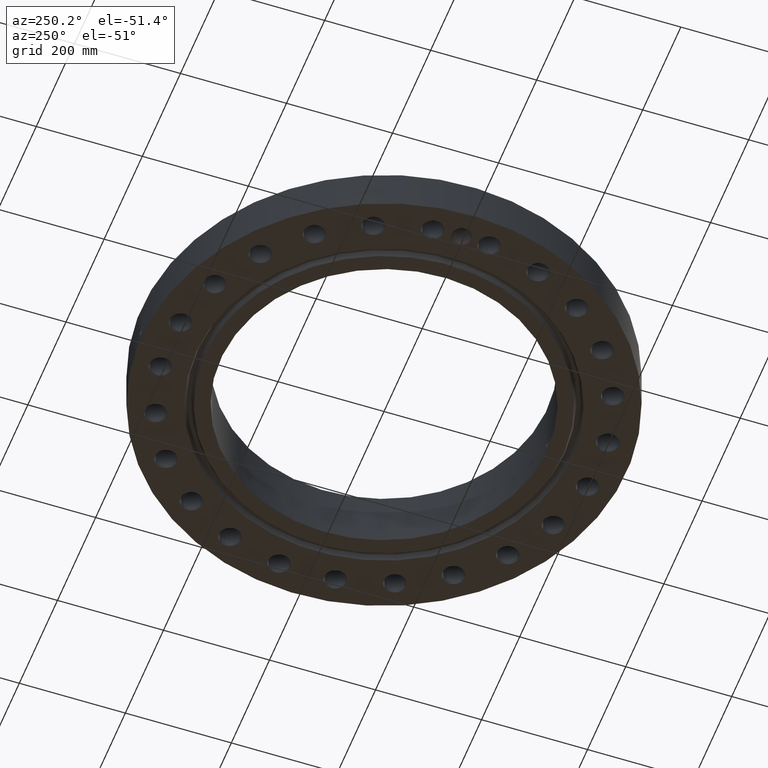
[diagram: clean part render]
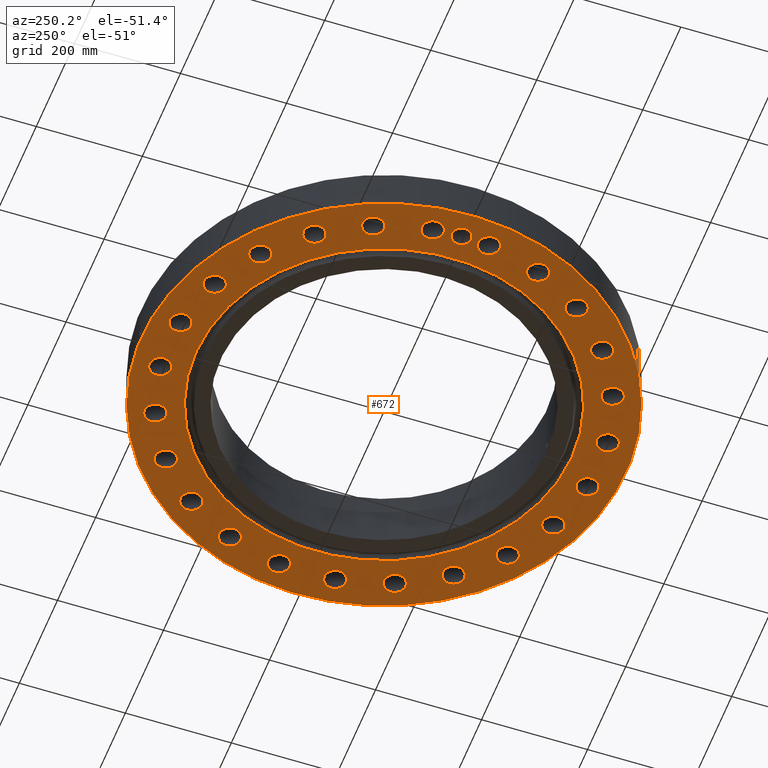
[diagram: same view with one face highlighted and labeled with its STEP entity id]
A machine part, auxiliary view. The second image highlights one B-rep face of the part: STEP entity #672.
In plain terms, the highlighted planar face has unit normal (0, 0, -1).
Its self-contained STEP definition (entity closure, byte-faithful):
#42=AXIS2_PLACEMENT_3D('Circle Axis2P3D',#40,#41,$) ;
#165=AXIS2_PLACEMENT_3D('Plane Axis2P3D',#162,#163,#164) ;
#169=AXIS2_PLACEMENT_3D('Circle Axis2P3D',#167,#168,$) ;
#178=AXIS2_PLACEMENT_3D('Circle Axis2P3D',#176,#177,$) ;
#187=AXIS2_PLACEMENT_3D('Circle Axis2P3D',#185,#186,$) ;
#224=AXIS2_PLACEMENT_3D('Circle Axis2P3D',#222,#223,$) ;
#233=AXIS2_PLACEMENT_3D('Circle Axis2P3D',#231,#232,$) ;
#242=AXIS2_PLACEMENT_3D('Circle Axis2P3D',#240,#241,$) ;
#251=AXIS2_PLACEMENT_3D('Circle Axis2P3D',#249,#250,$) ;
#260=AXIS2_PLACEMENT_3D('Circle Axis2P3D',#258,#259,$) ;
#269=AXIS2_PLACEMENT_3D('Circle Axis2P3D',#267,#268,$) ;
#278=AXIS2_PLACEMENT_3D('Circle Axis2P3D',#276,#277,$) ;
#287=AXIS2_PLACEMENT_3D('Circle Axis2P3D',#285,#286,$) ;
#296=AXIS2_PLACEMENT_3D('Circle Axis2P3D',#294,#295,$) ;
#305=AXIS2_PLACEMENT_3D('Circle Axis2P3D',#303,#304,$) ;
#314=AXIS2_PLACEMENT_3D('Circle Axis2P3D',#312,#313,$) ;
#323=AXIS2_PLACEMENT_3D('Circle Axis2P3D',#321,#322,$) ;
#332=AXIS2_PLACEMENT_3D('Circle Axis2P3D',#330,#331,$) ;
#341=AXIS2_PLACEMENT_3D('Circle Axis2P3D',#339,#340,$) ;
#350=AXIS2_PLACEMENT_3D('Circle Axis2P3D',#348,#349,$) ;
#359=AXIS2_PLACEMENT_3D('Circle Axis2P3D',#357,#358,$) ;
#368=AXIS2_PLACEMENT_3D('Circle Axis2P3D',#366,#367,$) ;
#377=AXIS2_PLACEMENT_3D('Circle Axis2P3D',#375,#376,$) ;
#386=AXIS2_PLACEMENT_3D('Circle Axis2P3D',#384,#385,$) ;
#395=AXIS2_PLACEMENT_3D('Circle Axis2P3D',#393,#394,$) ;
#404=AXIS2_PLACEMENT_3D('Circle Axis2P3D',#402,#403,$) ;
#413=AXIS2_PLACEMENT_3D('Circle Axis2P3D',#411,#412,$) ;
#422=AXIS2_PLACEMENT_3D('Circle Axis2P3D',#420,#421,$) ;
#431=AXIS2_PLACEMENT_3D('Circle Axis2P3D',#429,#430,$) ;
#440=AXIS2_PLACEMENT_3D('Circle Axis2P3D',#438,#439,$) ;
#449=AXIS2_PLACEMENT_3D('Circle Axis2P3D',#447,#448,$) ;
#458=AXIS2_PLACEMENT_3D('Circle Axis2P3D',#456,#457,$) ;
#467=AXIS2_PLACEMENT_3D('Circle Axis2P3D',#465,#466,$) ;
#476=AXIS2_PLACEMENT_3D('Circle Axis2P3D',#474,#475,$) ;
#485=AXIS2_PLACEMENT_3D('Circle Axis2P3D',#483,#484,$) ;
#494=AXIS2_PLACEMENT_3D('Circle Axis2P3D',#492,#493,$) ;
#503=AXIS2_PLACEMENT_3D('Circle Axis2P3D',#501,#502,$) ;
#512=AXIS2_PLACEMENT_3D('Circle Axis2P3D',#510,#511,$) ;
#521=AXIS2_PLACEMENT_3D('Circle Axis2P3D',#519,#520,$) ;
#530=AXIS2_PLACEMENT_3D('Circle Axis2P3D',#528,#529,$) ;
#539=AXIS2_PLACEMENT_3D('Circle Axis2P3D',#537,#538,$) ;
#548=AXIS2_PLACEMENT_3D('Circle Axis2P3D',#546,#547,$) ;
#557=AXIS2_PLACEMENT_3D('Circle Axis2P3D',#555,#556,$) ;
#566=AXIS2_PLACEMENT_3D('Circle Axis2P3D',#564,#565,$) ;
#575=AXIS2_PLACEMENT_3D('Circle Axis2P3D',#573,#574,$) ;
#584=AXIS2_PLACEMENT_3D('Circle Axis2P3D',#582,#583,$) ;
#593=AXIS2_PLACEMENT_3D('Circle Axis2P3D',#591,#592,$) ;
#602=AXIS2_PLACEMENT_3D('Circle Axis2P3D',#600,#601,$) ;
#611=AXIS2_PLACEMENT_3D('Circle Axis2P3D',#609,#610,$) ;
#620=AXIS2_PLACEMENT_3D('Circle Axis2P3D',#618,#619,$) ;
#629=AXIS2_PLACEMENT_3D('Circle Axis2P3D',#627,#628,$) ;
#638=AXIS2_PLACEMENT_3D('Circle Axis2P3D',#636,#637,$) ;
#647=AXIS2_PLACEMENT_3D('Circle Axis2P3D',#645,#646,$) ;
#656=AXIS2_PLACEMENT_3D('Circle Axis2P3D',#654,#655,$) ;
#665=AXIS2_PLACEMENT_3D('Circle Axis2P3D',#663,#664,$) ;
#40=CARTESIAN_POINT('Axis2P3D Location',(0.,7.99652833788E-018,2.51767111096E-015)) ;
#44=CARTESIAN_POINT('Vertex',(-8.62965969491,-15.7964861141,2.79741234551E-015)) ;
#46=CARTESIAN_POINT('Vertex',(8.62965969491,15.7964861141,2.79741234551E-015)) ;
#162=CARTESIAN_POINT('Axis2P3D Location',(0.,12.125,0.)) ;
#167=CARTESIAN_POINT('Axis2P3D Location',(0.,0.,0.)) ;
#176=CARTESIAN_POINT('Axis2P3D Location',(-16.0000000001,2.23792987641E-015,0.)) ;
#180=CARTESIAN_POINT('Vertex',(-16.6422807376,0.350879566067,0.)) ;
#182=CARTESIAN_POINT('Vertex',(-15.2706180952,-0.0603577039318,0.)) ;
#185=CARTESIAN_POINT('Axis2P3D Location',(-16.0000000001,2.23792987641E-015,0.)) ;
#189=CARTESIAN_POINT('Vertex',(-15.9640705733,-0.730992538894,0.)) ;
#193=CARTESIAN_POINT('Control Point',(-15.4784331482,-0.538956017716,0.)) ;
#194=CARTESIAN_POINT('Control Point',(-15.5284253323,-0.584180456732,0.)) ;
#195=CARTESIAN_POINT('Control Point',(-15.5834037092,-0.62369915158,0.)) ;
#196=CARTESIAN_POINT('Control Point',(-15.6425220017,-0.656774812367,0.)) ;
#197=CARTESIAN_POINT('Control Point',(-15.7416116954,-0.698286666719,0.)) ;
#198=CARTESIAN_POINT('Control Point',(-15.8458320225,-0.721254842815,0.)) ;
#199=CARTESIAN_POINT('Control Point',(-15.8850798336,-0.727167159233,0.)) ;
#200=CARTESIAN_POINT('Control Point',(-15.924572672,-0.730413805674,0.)) ;
#201=CARTESIAN_POINT('Control Point',(-15.9640705733,-0.730992538894,0.)) ;
#202=CARTESIAN_POINT('Vertex',(-15.4784331482,-0.53895601773,-3.82458719113E-018)) ;
#206=CARTESIAN_POINT('Control Point',(-15.4784331482,-0.53895601773,0.)) ;
#207=CARTESIAN_POINT('Control Point',(-15.4316159363,-0.490506917677,0.)) ;
#208=CARTESIAN_POINT('Control Point',(-15.3903182367,-0.436878751361,0.)) ;
#209=CARTESIAN_POINT('Control Point',(-15.3553143492,-0.378883495056,0.)) ;
#210=CARTESIAN_POINT('Control Point',(-15.310614512,-0.281286856105,0.)) ;
#211=CARTESIAN_POINT('Control Point',(-15.2842494525,-0.177930856355,0.)) ;
#212=CARTESIAN_POINT('Control Point',(-15.2770608483,-0.138990457553,0.)) ;
#213=CARTESIAN_POINT('Control Point',(-15.2725137827,-0.0997184798916,0.)) ;
#214=CARTESIAN_POINT('Control Point',(-15.2706180952,-0.0603577039318,0.)) ;
#222=CARTESIAN_POINT('Axis2P3D Location',(15.863117782,-2.08841907553,0.)) ;
#226=CARTESIAN_POINT('Vertex',(16.5739596572,-2.4767537618,0.)) ;
#228=CARTESIAN_POINT('Vertex',(15.1522759069,-1.70008438926,0.)) ;
#231=CARTESIAN_POINT('Axis2P3D Location',(15.863117782,-2.08841907553,0.)) ;
#240=CARTESIAN_POINT('Axis2P3D Location',(14.7820725202,-6.12293491787,0.)) ;
#244=CARTESIAN_POINT('Vertex',(14.1959604073,-5.56385299981,0.)) ;
#246=CARTESIAN_POINT('Vertex',(15.3681846332,-6.68201683592,0.)) ;
#249=CARTESIAN_POINT('Axis2P3D Location',(14.7820725202,-6.12293491787,0.)) ;
#258=CARTESIAN_POINT('Axis2P3D Location',(12.6936534447,-9.74018286418,0.)) ;
#262=CARTESIAN_POINT('Vertex',(12.2722136659,-9.04845422313,0.)) ;
#264=CARTESIAN_POINT('Vertex',(13.1150932235,-10.4319115052,0.)) ;
#267=CARTESIAN_POINT('Axis2P3D Location',(12.6936534447,-9.74018286418,0.)) ;
#276=CARTESIAN_POINT('Axis2P3D Location',(9.74018286418,-12.6936534447,0.)) ;
#280=CARTESIAN_POINT('Vertex',(9.51213584395,-11.9164182444,0.)) ;
#282=CARTESIAN_POINT('Vertex',(9.9682298844,-13.470888645,0.)) ;
#285=CARTESIAN_POINT('Axis2P3D Location',(9.74018286418,-12.6936534447,0.)) ;
#294=CARTESIAN_POINT('Axis2P3D Location',(6.12293491787,-14.7820725202,0.)) ;
#298=CARTESIAN_POINT('Vertex',(6.10382168378,-13.9722980552,0.)) ;
#300=CARTESIAN_POINT('Vertex',(6.14204815195,-15.5918469853,0.)) ;
#303=CARTESIAN_POINT('Axis2P3D Location',(6.12293491787,-14.7820725202,0.)) ;
#312=CARTESIAN_POINT('Axis2P3D Location',(2.08841907553,-15.863117782,0.)) ;
#316=CARTESIAN_POINT('Vertex',(2.2795421629,-15.0759888438,0.)) ;
#318=CARTESIAN_POINT('Vertex',(1.89729598816,-16.6502467203,0.)) ;
#321=CARTESIAN_POINT('Axis2P3D Location',(2.08841907553,-15.863117782,0.)) ;
#330=CARTESIAN_POINT('Axis2P3D Location',(-2.08841907553,-15.863117782,0.)) ;
#334=CARTESIAN_POINT('Vertex',(-1.70008438926,-15.1522759069,0.)) ;
#336=CARTESIAN_POINT('Vertex',(-2.4767537618,-16.5739596572,0.)) ;
#339=CARTESIAN_POINT('Axis2P3D Location',(-2.08841907553,-15.863117782,0.)) ;
#348=CARTESIAN_POINT('Axis2P3D Location',(-6.12293491787,-14.7820725202,0.)) ;
#352=CARTESIAN_POINT('Vertex',(-5.56385299981,-14.1959604073,0.)) ;
#354=CARTESIAN_POINT('Vertex',(-6.68201683592,-15.3681846332,-1.1189649382E-015)) ;
#357=CARTESIAN_POINT('Axis2P3D Location',(-6.12293491787,-14.7820725202,0.)) ;
#366=CARTESIAN_POINT('Axis2P3D Location',(-9.74018286418,-12.6936534447,0.)) ;
#370=CARTESIAN_POINT('Vertex',(-9.04845422313,-12.2722136659,0.)) ;
#372=CARTESIAN_POINT('Vertex',(-10.4319115052,-13.1150932235,-3.35689481461E-015)) ;
#375=CARTESIAN_POINT('Axis2P3D Location',(-9.74018286418,-12.6936534447,0.)) ;
#384=CARTESIAN_POINT('Axis2P3D Location',(-12.6936534447,-9.74018286418,0.)) ;
#388=CARTESIAN_POINT('Vertex',(-11.9164182444,-9.51213584395,0.)) ;
#390=CARTESIAN_POINT('Vertex',(-13.470888645,-9.9682298844,0.)) ;
#393=CARTESIAN_POINT('Axis2P3D Location',(-12.6936534447,-9.74018286418,0.)) ;
#402=CARTESIAN_POINT('Axis2P3D Location',(-14.7820725202,-6.12293491787,0.)) ;
#406=CARTESIAN_POINT('Vertex',(-13.9722980552,-6.10382168378,0.)) ;
#408=CARTESIAN_POINT('Vertex',(-15.5918469853,-6.14204815195,0.)) ;
#411=CARTESIAN_POINT('Axis2P3D Location',(-14.7820725202,-6.12293491787,0.)) ;
#420=CARTESIAN_POINT('Axis2P3D Location',(-15.863117782,-2.08841907553,0.)) ;
#424=CARTESIAN_POINT('Vertex',(-15.0759888438,-2.2795421629,0.)) ;
#426=CARTESIAN_POINT('Vertex',(-16.6502467203,-1.89729598816,0.)) ;
#429=CARTESIAN_POINT('Axis2P3D Location',(-15.863117782,-2.08841907553,0.)) ;
#438=CARTESIAN_POINT('Axis2P3D Location',(-15.863117782,2.08841907553,0.)) ;
#442=CARTESIAN_POINT('Vertex',(-15.1522759069,1.70008438926,0.)) ;
#444=CARTESIAN_POINT('Vertex',(-16.5739596572,2.4767537618,0.)) ;
#447=CARTESIAN_POINT('Axis2P3D Location',(-15.863117782,2.08841907553,0.)) ;
#456=CARTESIAN_POINT('Axis2P3D Location',(-14.7820725202,6.12293491787,0.)) ;
#460=CARTESIAN_POINT('Vertex',(-14.1959604073,5.56385299981,0.)) ;
#462=CARTESIAN_POINT('Vertex',(-15.3681846332,6.68201683592,0.)) ;
#465=CARTESIAN_POINT('Axis2P3D Location',(-14.7820725202,6.12293491787,0.)) ;
#474=CARTESIAN_POINT('Axis2P3D Location',(-12.6936534447,9.74018286418,0.)) ;
#478=CARTESIAN_POINT('Vertex',(-12.2722136659,9.04845422313,0.)) ;
#480=CARTESIAN_POINT('Vertex',(-13.1150932235,10.4319115052,0.)) ;
#483=CARTESIAN_POINT('Axis2P3D Location',(-12.6936534447,9.74018286418,0.)) ;
#492=CARTESIAN_POINT('Axis2P3D Location',(-9.74018286418,12.6936534447,0.)) ;
#496=CARTESIAN_POINT('Vertex',(-9.51213584395,11.9164182444,0.)) ;
#498=CARTESIAN_POINT('Vertex',(-9.96822988441,13.470888645,0.)) ;
#501=CARTESIAN_POINT('Axis2P3D Location',(-9.74018286418,12.6936534447,0.)) ;
#510=CARTESIAN_POINT('Axis2P3D Location',(-6.12293491787,14.7820725202,0.)) ;
#514=CARTESIAN_POINT('Vertex',(-6.10382168378,13.9722980552,0.)) ;
#516=CARTESIAN_POINT('Vertex',(-6.14204815195,15.5918469853,0.)) ;
#519=CARTESIAN_POINT('Axis2P3D Location',(-6.12293491787,14.7820725202,0.)) ;
#528=CARTESIAN_POINT('Axis2P3D Location',(-2.08841907553,15.863117782,0.)) ;
#532=CARTESIAN_POINT('Vertex',(-2.2795421629,15.0759888438,0.)) ;
#534=CARTESIAN_POINT('Vertex',(-1.89729598816,16.6502467203,0.)) ;
#537=CARTESIAN_POINT('Axis2P3D Location',(-2.08841907553,15.863117782,0.)) ;
#546=CARTESIAN_POINT('Axis2P3D Location',(2.08841907553,15.863117782,0.)) ;
#550=CARTESIAN_POINT('Vertex',(1.70008438926,15.1522759069,0.)) ;
#552=CARTESIAN_POINT('Vertex',(2.4767537618,16.5739596572,0.)) ;
#555=CARTESIAN_POINT('Axis2P3D Location',(2.08841907553,15.863117782,0.)) ;
#564=CARTESIAN_POINT('Axis2P3D Location',(6.12293491787,14.7820725202,0.)) ;
#568=CARTESIAN_POINT('Vertex',(5.56385299981,14.1959604073,0.)) ;
#570=CARTESIAN_POINT('Vertex',(6.68201683592,15.3681846332,0.)) ;
#573=CARTESIAN_POINT('Axis2P3D Location',(6.12293491787,14.7820725202,0.)) ;
#582=CARTESIAN_POINT('Axis2P3D Location',(9.74018286418,12.6936534447,0.)) ;
#586=CARTESIAN_POINT('Vertex',(9.04845422313,12.2722136659,0.)) ;
#588=CARTESIAN_POINT('Vertex',(10.4319115052,13.1150932235,0.)) ;
#591=CARTESIAN_POINT('Axis2P3D Location',(9.74018286418,12.6936534447,0.)) ;
#600=CARTESIAN_POINT('Axis2P3D Location',(12.6936534447,9.74018286418,0.)) ;
#604=CARTESIAN_POINT('Vertex',(11.9164182444,9.51213584395,0.)) ;
#606=CARTESIAN_POINT('Vertex',(13.470888645,9.9682298844,0.)) ;
#609=CARTESIAN_POINT('Axis2P3D Location',(12.6936534447,9.74018286418,0.)) ;
#618=CARTESIAN_POINT('Axis2P3D Location',(14.7820725202,6.12293491787,0.)) ;
#622=CARTESIAN_POINT('Vertex',(13.9722980552,6.10382168378,0.)) ;
#624=CARTESIAN_POINT('Vertex',(15.5918469853,6.14204815195,0.)) ;
#627=CARTESIAN_POINT('Axis2P3D Location',(14.7820725202,6.12293491787,0.)) ;
#636=CARTESIAN_POINT('Axis2P3D Location',(15.863117782,2.08841907553,0.)) ;
#640=CARTESIAN_POINT('Vertex',(15.0759888438,2.2795421629,0.)) ;
#642=CARTESIAN_POINT('Vertex',(16.6502467203,1.89729598816,0.)) ;
#645=CARTESIAN_POINT('Axis2P3D Location',(15.863117782,2.08841907553,0.)) ;
#654=CARTESIAN_POINT('Axis2P3D Location',(-1.1189649382E-015,-2.23792987641E-015,0.)) ;
#658=CARTESIAN_POINT('Vertex',(6.68942454017,-12.2449094861,0.)) ;
#660=CARTESIAN_POINT('Vertex',(-6.68942454017,12.2449094861,0.)) ;
#663=CARTESIAN_POINT('Axis2P3D Location',(1.1189649382E-015,4.47585975282E-015,0.)) ;
#41=DIRECTION('Axis2P3D Direction',(0.,0.,-0.0393700787402)) ;
#163=DIRECTION('Axis2P3D Direction',(0.,0.,-0.0393700787402)) ;
#164=DIRECTION('Axis2P3D XDirection',(0.0393700787402,0.,0.)) ;
#168=DIRECTION('Axis2P3D Direction',(0.,0.,-0.0393700787402)) ;
#177=DIRECTION('Axis2P3D Direction',(0.,0.,-0.0393700787402)) ;
#186=DIRECTION('Axis2P3D Direction',(0.,0.,-0.0393700787402)) ;
#223=DIRECTION('Axis2P3D Direction',(0.,0.,-0.0393700787402)) ;
#232=DIRECTION('Axis2P3D Direction',(0.,0.,-0.0393700787402)) ;
#241=DIRECTION('Axis2P3D Direction',(0.,0.,-0.0393700787402)) ;
#250=DIRECTION('Axis2P3D Direction',(0.,0.,-0.0393700787402)) ;
#259=DIRECTION('Axis2P3D Direction',(0.,0.,-0.0393700787402)) ;
#268=DIRECTION('Axis2P3D Direction',(0.,0.,-0.0393700787402)) ;
#277=DIRECTION('Axis2P3D Direction',(0.,0.,-0.0393700787402)) ;
#286=DIRECTION('Axis2P3D Direction',(0.,0.,-0.0393700787402)) ;
#295=DIRECTION('Axis2P3D Direction',(0.,0.,-0.0393700787402)) ;
#304=DIRECTION('Axis2P3D Direction',(0.,0.,-0.0393700787402)) ;
#313=DIRECTION('Axis2P3D Direction',(0.,0.,-0.0393700787402)) ;
#322=DIRECTION('Axis2P3D Direction',(0.,0.,-0.0393700787402)) ;
#331=DIRECTION('Axis2P3D Direction',(0.,0.,-0.0393700787402)) ;
#340=DIRECTION('Axis2P3D Direction',(0.,0.,-0.0393700787402)) ;
#349=DIRECTION('Axis2P3D Direction',(0.,0.,-0.0393700787402)) ;
#358=DIRECTION('Axis2P3D Direction',(0.,0.,-0.0393700787402)) ;
#367=DIRECTION('Axis2P3D Direction',(0.,0.,-0.0393700787402)) ;
#376=DIRECTION('Axis2P3D Direction',(0.,0.,-0.0393700787402)) ;
#385=DIRECTION('Axis2P3D Direction',(0.,0.,-0.0393700787402)) ;
#394=DIRECTION('Axis2P3D Direction',(0.,0.,-0.0393700787402)) ;
#403=DIRECTION('Axis2P3D Direction',(0.,0.,-0.0393700787402)) ;
#412=DIRECTION('Axis2P3D Direction',(0.,0.,-0.0393700787402)) ;
#421=DIRECTION('Axis2P3D Direction',(0.,0.,-0.0393700787402)) ;
#430=DIRECTION('Axis2P3D Direction',(0.,0.,-0.0393700787402)) ;
#439=DIRECTION('Axis2P3D Direction',(0.,0.,-0.0393700787402)) ;
#448=DIRECTION('Axis2P3D Direction',(0.,0.,-0.0393700787402)) ;
#457=DIRECTION('Axis2P3D Direction',(0.,0.,-0.0393700787402)) ;
#466=DIRECTION('Axis2P3D Direction',(0.,0.,-0.0393700787402)) ;
#475=DIRECTION('Axis2P3D Direction',(0.,0.,-0.0393700787402)) ;
#484=DIRECTION('Axis2P3D Direction',(0.,0.,-0.0393700787402)) ;
#493=DIRECTION('Axis2P3D Direction',(0.,0.,-0.0393700787402)) ;
#502=DIRECTION('Axis2P3D Direction',(0.,0.,-0.0393700787402)) ;
#511=DIRECTION('Axis2P3D Direction',(0.,0.,-0.0393700787402)) ;
#520=DIRECTION('Axis2P3D Direction',(0.,0.,-0.0393700787402)) ;
#529=DIRECTION('Axis2P3D Direction',(0.,0.,-0.0393700787402)) ;
#538=DIRECTION('Axis2P3D Direction',(0.,0.,-0.0393700787402)) ;
#547=DIRECTION('Axis2P3D Direction',(0.,0.,-0.0393700787402)) ;
#556=DIRECTION('Axis2P3D Direction',(0.,0.,-0.0393700787402)) ;
#565=DIRECTION('Axis2P3D Direction',(0.,0.,-0.0393700787402)) ;
#574=DIRECTION('Axis2P3D Direction',(0.,0.,-0.0393700787402)) ;
#583=DIRECTION('Axis2P3D Direction',(0.,0.,-0.0393700787402)) ;
#592=DIRECTION('Axis2P3D Direction',(0.,0.,-0.0393700787402)) ;
#601=DIRECTION('Axis2P3D Direction',(0.,0.,-0.0393700787402)) ;
#610=DIRECTION('Axis2P3D Direction',(0.,0.,-0.0393700787402)) ;
#619=DIRECTION('Axis2P3D Direction',(0.,0.,-0.0393700787402)) ;
#628=DIRECTION('Axis2P3D Direction',(0.,0.,-0.0393700787402)) ;
#637=DIRECTION('Axis2P3D Direction',(0.,0.,-0.0393700787402)) ;
#646=DIRECTION('Axis2P3D Direction',(0.,0.,-0.0393700787402)) ;
#655=DIRECTION('Axis2P3D Direction',(0.,0.,-0.0393700787402)) ;
#664=DIRECTION('Axis2P3D Direction',(0.,0.,-0.0393700787402)) ;
#173=ORIENTED_EDGE('',*,*,#48,.T.) ;
#174=ORIENTED_EDGE('',*,*,#171,.T.) ;
#217=ORIENTED_EDGE('',*,*,#184,.F.) ;
#218=ORIENTED_EDGE('',*,*,#191,.F.) ;
#219=ORIENTED_EDGE('',*,*,#204,.F.) ;
#220=ORIENTED_EDGE('',*,*,#215,.T.) ;
#237=ORIENTED_EDGE('',*,*,#230,.F.) ;
#238=ORIENTED_EDGE('',*,*,#235,.F.) ;
#255=ORIENTED_EDGE('',*,*,#248,.F.) ;
#256=ORIENTED_EDGE('',*,*,#253,.F.) ;
#273=ORIENTED_EDGE('',*,*,#266,.F.) ;
#274=ORIENTED_EDGE('',*,*,#271,.F.) ;
#291=ORIENTED_EDGE('',*,*,#284,.F.) ;
#292=ORIENTED_EDGE('',*,*,#289,.F.) ;
#309=ORIENTED_EDGE('',*,*,#302,.F.) ;
#310=ORIENTED_EDGE('',*,*,#307,.F.) ;
#327=ORIENTED_EDGE('',*,*,#320,.F.) ;
#328=ORIENTED_EDGE('',*,*,#325,.F.) ;
#345=ORIENTED_EDGE('',*,*,#338,.F.) ;
#346=ORIENTED_EDGE('',*,*,#343,.F.) ;
#363=ORIENTED_EDGE('',*,*,#356,.F.) ;
#364=ORIENTED_EDGE('',*,*,#361,.F.) ;
#381=ORIENTED_EDGE('',*,*,#374,.F.) ;
#382=ORIENTED_EDGE('',*,*,#379,.F.) ;
#399=ORIENTED_EDGE('',*,*,#392,.F.) ;
#400=ORIENTED_EDGE('',*,*,#397,.F.) ;
#417=ORIENTED_EDGE('',*,*,#410,.F.) ;
#418=ORIENTED_EDGE('',*,*,#415,.F.) ;
#435=ORIENTED_EDGE('',*,*,#428,.F.) ;
#436=ORIENTED_EDGE('',*,*,#433,.F.) ;
#453=ORIENTED_EDGE('',*,*,#446,.F.) ;
#454=ORIENTED_EDGE('',*,*,#451,.F.) ;
#471=ORIENTED_EDGE('',*,*,#464,.F.) ;
#472=ORIENTED_EDGE('',*,*,#469,.F.) ;
#489=ORIENTED_EDGE('',*,*,#482,.F.) ;
#490=ORIENTED_EDGE('',*,*,#487,.F.) ;
#507=ORIENTED_EDGE('',*,*,#500,.F.) ;
#508=ORIENTED_EDGE('',*,*,#505,.F.) ;
#525=ORIENTED_EDGE('',*,*,#518,.F.) ;
#526=ORIENTED_EDGE('',*,*,#523,.F.) ;
#543=ORIENTED_EDGE('',*,*,#536,.F.) ;
#544=ORIENTED_EDGE('',*,*,#541,.F.) ;
#561=ORIENTED_EDGE('',*,*,#554,.F.) ;
#562=ORIENTED_EDGE('',*,*,#559,.F.) ;
#579=ORIENTED_EDGE('',*,*,#572,.F.) ;
#580=ORIENTED_EDGE('',*,*,#577,.F.) ;
#597=ORIENTED_EDGE('',*,*,#590,.F.) ;
#598=ORIENTED_EDGE('',*,*,#595,.F.) ;
#615=ORIENTED_EDGE('',*,*,#608,.F.) ;
#616=ORIENTED_EDGE('',*,*,#613,.F.) ;
#633=ORIENTED_EDGE('',*,*,#626,.F.) ;
#634=ORIENTED_EDGE('',*,*,#631,.F.) ;
#651=ORIENTED_EDGE('',*,*,#644,.F.) ;
#652=ORIENTED_EDGE('',*,*,#649,.F.) ;
#669=ORIENTED_EDGE('',*,*,#662,.F.) ;
#670=ORIENTED_EDGE('',*,*,#667,.F.) ;
#221=FACE_BOUND('',#216,.T.) ;
#239=FACE_BOUND('',#236,.T.) ;
#257=FACE_BOUND('',#254,.T.) ;
#275=FACE_BOUND('',#272,.T.) ;
#293=FACE_BOUND('',#290,.T.) ;
#311=FACE_BOUND('',#308,.T.) ;
#329=FACE_BOUND('',#326,.T.) ;
#347=FACE_BOUND('',#344,.T.) ;
#365=FACE_BOUND('',#362,.T.) ;
#383=FACE_BOUND('',#380,.T.) ;
#401=FACE_BOUND('',#398,.T.) ;
#419=FACE_BOUND('',#416,.T.) ;
#437=FACE_BOUND('',#434,.T.) ;
#455=FACE_BOUND('',#452,.T.) ;
#473=FACE_BOUND('',#470,.T.) ;
#491=FACE_BOUND('',#488,.T.) ;
#509=FACE_BOUND('',#506,.T.) ;
#527=FACE_BOUND('',#524,.T.) ;
#545=FACE_BOUND('',#542,.T.) ;
#563=FACE_BOUND('',#560,.T.) ;
#581=FACE_BOUND('',#578,.T.) ;
#599=FACE_BOUND('',#596,.T.) ;
#617=FACE_BOUND('',#614,.T.) ;
#635=FACE_BOUND('',#632,.T.) ;
#653=FACE_BOUND('',#650,.T.) ;
#671=FACE_BOUND('',#668,.T.) ;
#672=ADVANCED_FACE('PartBody',(#175,#221,#239,#257,#275,#293,#311,#329,#347,#365,#383,#401,#419,#437,#455,#473,#491,#509,#527,#545,#563,#581,#599,#617,#635,#653,#671),#166,.T.) ;
#192=B_SPLINE_CURVE_WITH_KNOTS('',5,(#193,#194,#195,#196,#197,#198,#199,#200,#201),.UNSPECIFIED.,.F.,.U.,(6,3,6),(0.,11.8289993792,18.8345510709),.UNSPECIFIED.) ;
#205=B_SPLINE_CURVE_WITH_KNOTS('',5,(#206,#207,#208,#209,#210,#211,#212,#213,#214),.UNSPECIFIED.,.F.,.U.,(6,3,6),(0.,11.8221186105,18.8027817397),.UNSPECIFIED.) ;
#43=CIRCLE('generated circle',#42,18.0000000001) ;
#170=CIRCLE('generated circle',#169,18.0000000001) ;
#179=CIRCLE('generated circle',#178,0.731875000003) ;
#188=CIRCLE('generated circle',#187,0.731875000003) ;
#225=CIRCLE('generated circle',#224,0.810000000003) ;
#234=CIRCLE('generated circle',#233,0.810000000003) ;
#243=CIRCLE('generated circle',#242,0.810000000003) ;
#252=CIRCLE('generated circle',#251,0.810000000003) ;
#261=CIRCLE('generated circle',#260,0.810000000003) ;
#270=CIRCLE('generated circle',#269,0.810000000003) ;
#279=CIRCLE('generated circle',#278,0.810000000003) ;
#288=CIRCLE('generated circle',#287,0.810000000003) ;
#297=CIRCLE('generated circle',#296,0.810000000003) ;
#306=CIRCLE('generated circle',#305,0.810000000003) ;
#315=CIRCLE('generated circle',#314,0.810000000003) ;
#324=CIRCLE('generated circle',#323,0.810000000003) ;
#333=CIRCLE('generated circle',#332,0.810000000003) ;
#342=CIRCLE('generated circle',#341,0.810000000003) ;
#351=CIRCLE('generated circle',#350,0.810000000003) ;
#360=CIRCLE('generated circle',#359,0.810000000003) ;
#369=CIRCLE('generated circle',#368,0.810000000003) ;
#378=CIRCLE('generated circle',#377,0.810000000003) ;
#387=CIRCLE('generated circle',#386,0.810000000003) ;
#396=CIRCLE('generated circle',#395,0.810000000003) ;
#405=CIRCLE('generated circle',#404,0.810000000003) ;
#414=CIRCLE('generated circle',#413,0.810000000003) ;
#423=CIRCLE('generated circle',#422,0.810000000003) ;
#432=CIRCLE('generated circle',#431,0.810000000003) ;
#441=CIRCLE('generated circle',#440,0.810000000003) ;
#450=CIRCLE('generated circle',#449,0.810000000003) ;
#459=CIRCLE('generated circle',#458,0.810000000003) ;
#468=CIRCLE('generated circle',#467,0.810000000003) ;
#477=CIRCLE('generated circle',#476,0.810000000003) ;
#486=CIRCLE('generated circle',#485,0.810000000003) ;
#495=CIRCLE('generated circle',#494,0.810000000003) ;
#504=CIRCLE('generated circle',#503,0.810000000003) ;
#513=CIRCLE('generated circle',#512,0.810000000003) ;
#522=CIRCLE('generated circle',#521,0.810000000003) ;
#531=CIRCLE('generated circle',#530,0.810000000003) ;
#540=CIRCLE('generated circle',#539,0.810000000003) ;
#549=CIRCLE('generated circle',#548,0.810000000003) ;
#558=CIRCLE('generated circle',#557,0.810000000003) ;
#567=CIRCLE('generated circle',#566,0.810000000003) ;
#576=CIRCLE('generated circle',#575,0.810000000003) ;
#585=CIRCLE('generated circle',#584,0.810000000003) ;
#594=CIRCLE('generated circle',#593,0.810000000003) ;
#603=CIRCLE('generated circle',#602,0.810000000003) ;
#612=CIRCLE('generated circle',#611,0.810000000003) ;
#621=CIRCLE('generated circle',#620,0.810000000003) ;
#630=CIRCLE('generated circle',#629,0.810000000003) ;
#639=CIRCLE('generated circle',#638,0.810000000003) ;
#648=CIRCLE('generated circle',#647,0.810000000003) ;
#657=CIRCLE('generated circle',#656,13.9530000001) ;
#666=CIRCLE('generated circle',#665,13.9530000001) ;
#48=EDGE_CURVE('',#45,#47,#43,.T.) ;
#171=EDGE_CURVE('',#47,#45,#170,.T.) ;
#184=EDGE_CURVE('',#181,#183,#179,.T.) ;
#191=EDGE_CURVE('',#190,#181,#188,.T.) ;
#204=EDGE_CURVE('',#203,#190,#192,.T.) ;
#215=EDGE_CURVE('',#203,#183,#205,.T.) ;
#230=EDGE_CURVE('',#227,#229,#225,.T.) ;
#235=EDGE_CURVE('',#229,#227,#234,.T.) ;
#248=EDGE_CURVE('',#245,#247,#243,.T.) ;
#253=EDGE_CURVE('',#247,#245,#252,.T.) ;
#266=EDGE_CURVE('',#263,#265,#261,.T.) ;
#271=EDGE_CURVE('',#265,#263,#270,.T.) ;
#284=EDGE_CURVE('',#281,#283,#279,.T.) ;
#289=EDGE_CURVE('',#283,#281,#288,.T.) ;
#302=EDGE_CURVE('',#299,#301,#297,.T.) ;
#307=EDGE_CURVE('',#301,#299,#306,.T.) ;
#320=EDGE_CURVE('',#317,#319,#315,.T.) ;
#325=EDGE_CURVE('',#319,#317,#324,.T.) ;
#338=EDGE_CURVE('',#335,#337,#333,.T.) ;
#343=EDGE_CURVE('',#337,#335,#342,.T.) ;
#356=EDGE_CURVE('',#353,#355,#351,.T.) ;
#361=EDGE_CURVE('',#355,#353,#360,.T.) ;
#374=EDGE_CURVE('',#371,#373,#369,.T.) ;
#379=EDGE_CURVE('',#373,#371,#378,.T.) ;
#392=EDGE_CURVE('',#389,#391,#387,.T.) ;
#397=EDGE_CURVE('',#391,#389,#396,.T.) ;
#410=EDGE_CURVE('',#407,#409,#405,.T.) ;
#415=EDGE_CURVE('',#409,#407,#414,.T.) ;
#428=EDGE_CURVE('',#425,#427,#423,.T.) ;
#433=EDGE_CURVE('',#427,#425,#432,.T.) ;
#446=EDGE_CURVE('',#443,#445,#441,.T.) ;
#451=EDGE_CURVE('',#445,#443,#450,.T.) ;
#464=EDGE_CURVE('',#461,#463,#459,.T.) ;
#469=EDGE_CURVE('',#463,#461,#468,.T.) ;
#482=EDGE_CURVE('',#479,#481,#477,.T.) ;
#487=EDGE_CURVE('',#481,#479,#486,.T.) ;
#500=EDGE_CURVE('',#497,#499,#495,.T.) ;
#505=EDGE_CURVE('',#499,#497,#504,.T.) ;
#518=EDGE_CURVE('',#515,#517,#513,.T.) ;
#523=EDGE_CURVE('',#517,#515,#522,.T.) ;
#536=EDGE_CURVE('',#533,#535,#531,.T.) ;
#541=EDGE_CURVE('',#535,#533,#540,.T.) ;
#554=EDGE_CURVE('',#551,#553,#549,.T.) ;
#559=EDGE_CURVE('',#553,#551,#558,.T.) ;
#572=EDGE_CURVE('',#569,#571,#567,.T.) ;
#577=EDGE_CURVE('',#571,#569,#576,.T.) ;
#590=EDGE_CURVE('',#587,#589,#585,.T.) ;
#595=EDGE_CURVE('',#589,#587,#594,.T.) ;
#608=EDGE_CURVE('',#605,#607,#603,.T.) ;
#613=EDGE_CURVE('',#607,#605,#612,.T.) ;
#626=EDGE_CURVE('',#623,#625,#621,.T.) ;
#631=EDGE_CURVE('',#625,#623,#630,.T.) ;
#644=EDGE_CURVE('',#641,#643,#639,.T.) ;
#649=EDGE_CURVE('',#643,#641,#648,.T.) ;
#662=EDGE_CURVE('',#659,#661,#657,.T.) ;
#667=EDGE_CURVE('',#661,#659,#666,.T.) ;
#172=EDGE_LOOP('',(#173,#174)) ;
#216=EDGE_LOOP('',(#217,#218,#219,#220)) ;
#236=EDGE_LOOP('',(#237,#238)) ;
#254=EDGE_LOOP('',(#255,#256)) ;
#272=EDGE_LOOP('',(#273,#274)) ;
#290=EDGE_LOOP('',(#291,#292)) ;
#308=EDGE_LOOP('',(#309,#310)) ;
#326=EDGE_LOOP('',(#327,#328)) ;
#344=EDGE_LOOP('',(#345,#346)) ;
#362=EDGE_LOOP('',(#363,#364)) ;
#380=EDGE_LOOP('',(#381,#382)) ;
#398=EDGE_LOOP('',(#399,#400)) ;
#416=EDGE_LOOP('',(#417,#418)) ;
#434=EDGE_LOOP('',(#435,#436)) ;
#452=EDGE_LOOP('',(#453,#454)) ;
#470=EDGE_LOOP('',(#471,#472)) ;
#488=EDGE_LOOP('',(#489,#490)) ;
#506=EDGE_LOOP('',(#507,#508)) ;
#524=EDGE_LOOP('',(#525,#526)) ;
#542=EDGE_LOOP('',(#543,#544)) ;
#560=EDGE_LOOP('',(#561,#562)) ;
#578=EDGE_LOOP('',(#579,#580)) ;
#596=EDGE_LOOP('',(#597,#598)) ;
#614=EDGE_LOOP('',(#615,#616)) ;
#632=EDGE_LOOP('',(#633,#634)) ;
#650=EDGE_LOOP('',(#651,#652)) ;
#668=EDGE_LOOP('',(#669,#670)) ;
#175=FACE_OUTER_BOUND('',#172,.T.) ;
#166=PLANE('',#165) ;
#45=VERTEX_POINT('',#44) ;
#47=VERTEX_POINT('',#46) ;
#181=VERTEX_POINT('',#180) ;
#183=VERTEX_POINT('',#182) ;
#190=VERTEX_POINT('',#189) ;
#203=VERTEX_POINT('',#202) ;
#227=VERTEX_POINT('',#226) ;
#229=VERTEX_POINT('',#228) ;
#245=VERTEX_POINT('',#244) ;
#247=VERTEX_POINT('',#246) ;
#263=VERTEX_POINT('',#262) ;
#265=VERTEX_POINT('',#264) ;
#281=VERTEX_POINT('',#280) ;
#283=VERTEX_POINT('',#282) ;
#299=VERTEX_POINT('',#298) ;
#301=VERTEX_POINT('',#300) ;
#317=VERTEX_POINT('',#316) ;
#319=VERTEX_POINT('',#318) ;
#335=VERTEX_POINT('',#334) ;
#337=VERTEX_POINT('',#336) ;
#353=VERTEX_POINT('',#352) ;
#355=VERTEX_POINT('',#354) ;
#371=VERTEX_POINT('',#370) ;
#373=VERTEX_POINT('',#372) ;
#389=VERTEX_POINT('',#388) ;
#391=VERTEX_POINT('',#390) ;
#407=VERTEX_POINT('',#406) ;
#409=VERTEX_POINT('',#408) ;
#425=VERTEX_POINT('',#424) ;
#427=VERTEX_POINT('',#426) ;
#443=VERTEX_POINT('',#442) ;
#445=VERTEX_POINT('',#444) ;
#461=VERTEX_POINT('',#460) ;
#463=VERTEX_POINT('',#462) ;
#479=VERTEX_POINT('',#478) ;
#481=VERTEX_POINT('',#480) ;
#497=VERTEX_POINT('',#496) ;
#499=VERTEX_POINT('',#498) ;
#515=VERTEX_POINT('',#514) ;
#517=VERTEX_POINT('',#516) ;
#533=VERTEX_POINT('',#532) ;
#535=VERTEX_POINT('',#534) ;
#551=VERTEX_POINT('',#550) ;
#553=VERTEX_POINT('',#552) ;
#569=VERTEX_POINT('',#568) ;
#571=VERTEX_POINT('',#570) ;
#587=VERTEX_POINT('',#586) ;
#589=VERTEX_POINT('',#588) ;
#605=VERTEX_POINT('',#604) ;
#607=VERTEX_POINT('',#606) ;
#623=VERTEX_POINT('',#622) ;
#625=VERTEX_POINT('',#624) ;
#641=VERTEX_POINT('',#640) ;
#643=VERTEX_POINT('',#642) ;
#659=VERTEX_POINT('',#658) ;
#661=VERTEX_POINT('',#660) ;